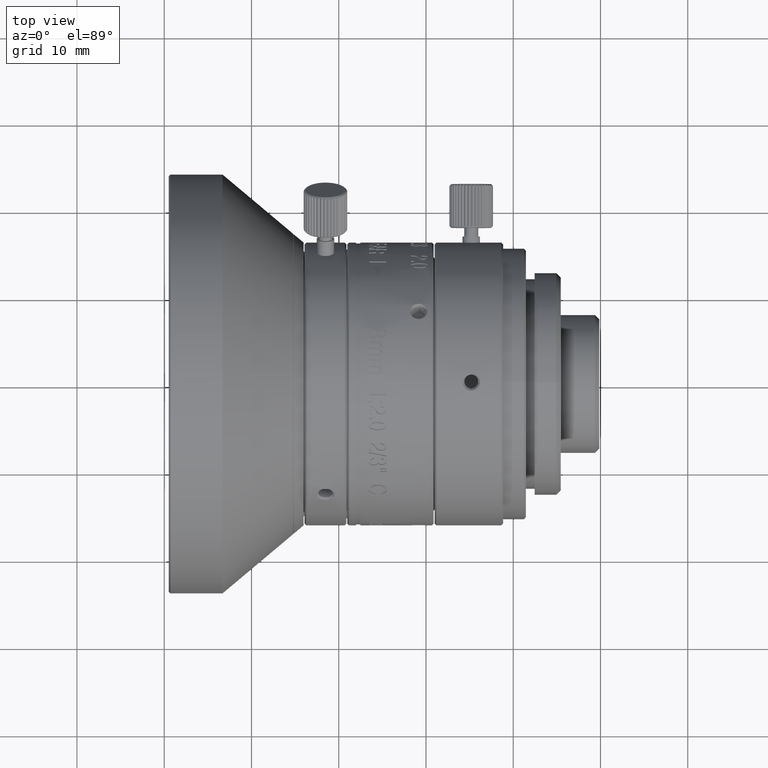
[diagram: clean part render]
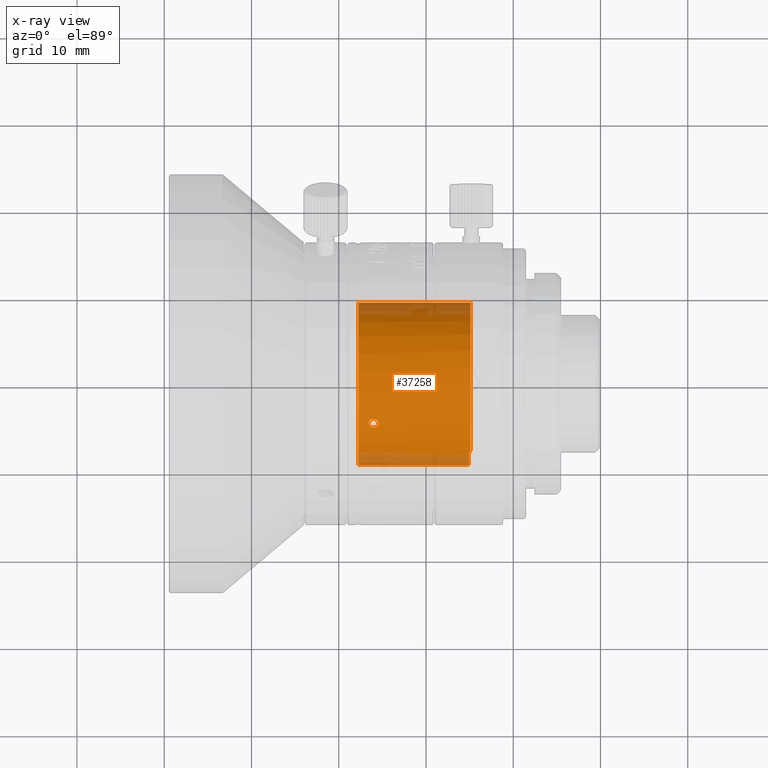
[diagram: x-ray — body ghosted, one internal face saturated and labeled with its STEP entity id]
A machine part, top view, then the same camera in x-ray: the body is ghosted and one INTERNAL B-rep face — a face not visible from any outside direction — is saturated and labeled: STEP entity #37258.
In plain terms, the highlighted cylindrical surface (partial cylindrical patch) has radius 9.3 mm, axis along (1, 0, 0).
Its self-contained STEP definition (entity closure, byte-faithful):
#1280 = CARTESIAN_POINT ( 'NONE',  ( 4.127753710119009156, -4.165479850295501940, 8.314973098202182555 ) ) ;
#1400 = LINE ( 'NONE', #52053, #67065 ) ;
#1757 = CARTESIAN_POINT ( 'NONE',  ( 3.836432456620450182, -4.165629492627000552, 8.314898131498662082 ) ) ;
#2320 = VERTEX_POINT ( 'NONE', #65933 ) ;
#2793 = CARTESIAN_POINT ( 'NONE',  ( 4.398610106473671344, -4.959965879075435957, 7.866981481087606198 ) ) ;
#3789 = CARTESIAN_POINT ( 'NONE',  ( 3.529136943312270791, 9.294575274457042013, 0.3241674387297692195 ) ) ;
#4627 = CIRCLE ( 'NONE', #82363, 9.299999999999997158 ) ;
#4742 = CARTESIAN_POINT ( 'NONE',  ( 4.532799999999999940, 9.299999999999998934, 4.544936563534000659E-12 ) ) ;
#5911 = DIRECTION ( 'NONE',  ( 0.000000000000000000, 1.000000000000000000, -3.771546347026999962E-11 ) ) ;
#6872 = CARTESIAN_POINT ( 'NONE',  ( 2.232799999999000029, 0.000000000000000000, 2.442490654175000269E-12 ) ) ;
#7069 = VERTEX_POINT ( 'NONE', #28516 ) ;
#7737 = CARTESIAN_POINT ( 'NONE',  ( 14.91279999980999982, -8.080329455667000005, 4.604979652609999974 ) ) ;
#8873 = CARTESIAN_POINT ( 'NONE',  ( 15.11280000000000001, 0.000000000000000000, 2.442490654175000269E-12 ) ) ;
#9067 = DIRECTION ( 'NONE',  ( 1.000000000000000000, -1.110923480791999971E-13, -3.209961629899000518E-11 ) ) ;
#9446 = CIRCLE ( 'NONE', #32728, 9.299999999999998934 ) ;
#9551 = CARTESIAN_POINT ( 'NONE',  ( 3.432800000000000296, -4.650000003985999442, 8.054036252895000914 ) ) ;
#11076 = CARTESIAN_POINT ( 'NONE',  ( 3.542038427086720898, -4.938980515152154638, 7.880299674918182617 ) ) ;
#11106 = CARTESIAN_POINT ( 'NONE',  ( 4.306824977124147580, 9.289148707336684296, 0.4537671128490006756 ) ) ;
#12063 = CARTESIAN_POINT ( 'NONE',  ( 4.233574622278393207, 9.287114030861767233, 0.4947656531276288794 ) ) ;
#12398 = DIRECTION ( 'NONE',  ( 0.000000000000000000, -0.8734061719794912193, 0.4869924627220951208 ) ) ;
#13406 = B_SPLINE_CURVE_WITH_KNOTS ( 'NONE', 3,
 ( #4742, #79720, #93877, #18390, #77797, #11106, #12063, #40751, #78261, #64600, #27136, #70464, #79238, #3789, #33493, #63181, #41241, #41720 ),
 .UNSPECIFIED., .F., .F.,
 ( 4, 2, 2, 2, 2, 2, 2, 2, 4 ),
 ( 0.000000000000000000, 0.1250000000000000000, 0.2500000000000000000, 0.3750000000000000000, 0.5000000000000000000, 0.6250000000000000000, 0.7500000000000000000, 0.8750000000000000000, 1.000000000000000000 ),
 .UNSPECIFIED. ) ;
#14736 = ORIENTED_EDGE ( 'NONE', *, *, #87548, .T. ) ;
#14778 = EDGE_LOOP ( 'NONE', ( #24714, #30665, #85236, #14736, #45375, #70752, #58007, #72449 ) ) ;
#16366 = LINE ( 'NONE', #46049, #90683 ) ;
#16934 = CARTESIAN_POINT ( 'NONE',  ( 4.129009832174532768, -5.118100662218775021, 7.764988449318423136 ) ) ;
#17812 = CARTESIAN_POINT ( 'NONE',  ( 3.487230982901239784, -4.440238215344757045, 8.171620087763141527 ) ) ;
#18151 = DIRECTION ( 'NONE',  ( 0.000000000000000000, 1.000000000000000000, -3.771546347026999962E-11 ) ) ;
#18356 = CARTESIAN_POINT ( 'NONE',  ( 3.436244133542391221, -4.712035622345890573, 8.017975401477620778 ) ) ;
#18390 = CARTESIAN_POINT ( 'NONE',  ( 4.477479558995211661, 9.296608968782168247, 0.2509541241526489497 ) ) ;
#18835 = CARTESIAN_POINT ( 'NONE',  ( 3.695961138630939669, -5.069418312547987249, 7.797538326584876778 ) ) ;
#20877 = CARTESIAN_POINT ( 'NONE',  ( 14.99551625472000005, -7.860880351732999038, 4.971601983467000885 ) ) ;
#20952 = EDGE_CURVE ( 'NONE', #7069, #87113, #21199, .T. ) ;
#21199 = B_SPLINE_CURVE_WITH_KNOTS ( 'NONE', 3,
 ( #52036, #7737, #88569, #20877, #36438, #50582 ),
 .UNSPECIFIED., .F., .F.,
 ( 4, 1, 1, 4 ),
 ( 0.000000000000000000, 0.3333333333333000081, 0.6666666666667000474, 1.000000000000000000 ),
 .UNSPECIFIED. ) ;
#23681 = CARTESIAN_POINT ( 'NONE',  ( 3.504796655206305012, -4.410653069803718296, 8.187615144443906701 ) ) ;
#24511 = DIRECTION ( 'NONE',  ( 1.000000000000000000, 0.000000000000000000, 0.000000000000000000 ) ) ;
#24714 = ORIENTED_EDGE ( 'NONE', *, *, #79394, .F. ) ;
#24723 = CARTESIAN_POINT ( 'NONE',  ( 4.532800000000001717, -4.712539687257563337, 8.017928949924526094 ) ) ;
#25137 = CARTESIAN_POINT ( 'NONE',  ( 4.532799999999999940, -4.649999999999999467, 8.054036255195999416 ) ) ;
#27136 = CARTESIAN_POINT ( 'NONE',  ( 3.867805017248658217, 9.284400318157304710, 0.5426396524927790121 ) ) ;
#28516 = CARTESIAN_POINT ( 'NONE',  ( 14.91280000000000072, -8.122677399969999712, 4.529029902343999936 ) ) ;
#30340 = CARTESIAN_POINT ( 'NONE',  ( 14.91280000000000072, -9.300000000000999023, -1.079167501321999869E-13 ) ) ;
#30609 = LINE ( 'NONE', #90027, #30677 ) ;
#30665 = ORIENTED_EDGE ( 'NONE', *, *, #65584, .F. ) ;
#30677 = VECTOR ( 'NONE', #37407, 1000.000000000000000 ) ;
#31456 = CARTESIAN_POINT ( 'NONE',  ( 3.432799999093305576, -4.587415484701491408, 8.090169441993719346 ) ) ;
#32728 = AXIS2_PLACEMENT_3D ( 'NONE', #6872, #42415, #5911 ) ;
#33463 = CARTESIAN_POINT ( 'NONE',  ( 4.271495691020294139, -5.068365036879834307, 7.798219167107547811 ) ) ;
#33493 = CARTESIAN_POINT ( 'NONE',  ( 3.488107600389654728, 9.296609546535652413, 0.2509263114875041056 ) ) ;
#35040 = AXIS2_PLACEMENT_3D ( 'NONE', #69277, #24511, #18151 ) ;
#36438 = CARTESIAN_POINT ( 'NONE',  ( 15.06927249519000078, -7.774237311151000362, 5.104603216490000150 ) ) ;
#37104 = DIRECTION ( 'NONE',  ( -1.000000000000000000, 0.000000000000000000, 0.000000000000000000 ) ) ;
#37258 = ADVANCED_FACE ( 'NONE', ( #76597, #77556 ), #45927, .F. ) ;
#37407 = DIRECTION ( 'NONE',  ( -1.000000000000000000, 0.000000000000000000, 4.296187597658999724E-13 ) ) ;
#38271 = CARTESIAN_POINT ( 'NONE',  ( 4.532800000000000828, -4.587171386531788464, 8.090310372096411129 ) ) ;
#38634 = VERTEX_POINT ( 'NONE', #39955 ) ;
#38805 = EDGE_CURVE ( 'NONE', #60928, #62205, #84152, .T. ) ;
#39955 = CARTESIAN_POINT ( 'NONE',  ( 4.532799999999999940, 9.299999999999998934, 4.544936563534000659E-12 ) ) ;
#40072 = CARTESIAN_POINT ( 'NONE',  ( 15.11280139772000020, -7.732205970456000443, 5.167495419933000100 ) ) ;
#40721 = CARTESIAN_POINT ( 'NONE',  ( 4.460845080078333247, -4.885295015798154061, 7.913583069456331387 ) ) ;
#40751 = CARTESIAN_POINT ( 'NONE',  ( 4.097809100003187766, 9.284400960443145223, 0.5426360378837008502 ) ) ;
#41241 = CARTESIAN_POINT ( 'NONE',  ( 3.432800000655576333, 9.300000000000000711, 0.05238553724049710425 ) ) ;
#41720 = CARTESIAN_POINT ( 'NONE',  ( 3.432800000365000326, 9.299999999999998934, 7.666191667715000173E-10 ) ) ;
#42415 = DIRECTION ( 'NONE',  ( 1.000000000000000000, 0.000000000000000000, 0.000000000000000000 ) ) ;
#43278 = CARTESIAN_POINT ( 'NONE',  ( 4.532799999999999940, -4.649999999999999467, 8.054036255195999416 ) ) ;
#44656 = VERTEX_POINT ( 'NONE', #91069 ) ;
#45375 = ORIENTED_EDGE ( 'NONE', *, *, #53803, .F. ) ;
#45383 = DIRECTION ( 'NONE',  ( 0.000000000000000000, -0.8314200554338834204, 0.5556443929549892413 ) ) ;
#45927 = CYLINDRICAL_SURFACE ( 'NONE', #35040, 9.299999999999998934 ) ;
#46049 = CARTESIAN_POINT ( 'NONE',  ( 2.232800000000000118, -9.299999999999998934, 4.069152179210999922E-10 ) ) ;
#47085 = ORIENTED_EDGE ( 'NONE', *, *, #38805, .T. ) ;
#47577 = CARTESIAN_POINT ( 'NONE',  ( 3.502612085629092764, -4.888348009515143033, 7.911939995974233142 ) ) ;
#47878 = VERTEX_POINT ( 'NONE', #61476 ) ;
#48038 = CARTESIAN_POINT ( 'NONE',  ( 3.459888348659813317, -4.800086040739333093, 7.965573374970282394 ) ) ;
#50582 = CARTESIAN_POINT ( 'NONE',  ( 15.11280139772000020, -7.732205970456000443, 5.167495419933000100 ) ) ;
#50683 = EDGE_CURVE ( 'NONE', #2320, #47878, #1400, .T. ) ;
#51797 = B_SPLINE_CURVE_WITH_KNOTS ( 'NONE', 3,
 ( #25137, #38271, #54832, #84534, #67970, #68439, #1280, #1757, #60679, #90408, #53375, #23681, #17812, #83081, #31456, #9551 ),
 .UNSPECIFIED., .F., .F.,
 ( 4, 2, 2, 2, 2, 2, 2, 4 ),
 ( 0.000000000000000000, 0.1250000000000003886, 0.2500000000000007772, 0.5000000000000004441, 0.7500000000000002220, 0.8124999999999997780, 0.8749999999999992228, 1.000000000000000000 ),
 .UNSPECIFIED. ) ;
#52036 = CARTESIAN_POINT ( 'NONE',  ( 14.91280000000000072, -8.122677399969999712, 4.529029902343999936 ) ) ;
#52053 = CARTESIAN_POINT ( 'NONE',  ( 3.432800000365000326, 9.299999999999998934, 7.666191667715000173E-10 ) ) ;
#53375 = CARTESIAN_POINT ( 'NONE',  ( 3.544376536566780533, -4.357672122219093502, 8.215935487266852633 ) ) ;
#53803 = EDGE_CURVE ( 'NONE', #64306, #55736, #16366, .T. ) ;
#53985 = DIRECTION ( 'NONE',  ( -1.000000000000000000, -1.924386575432000272E-14, -1.122972514193000150E-09 ) ) ;
#54832 = CARTESIAN_POINT ( 'NONE',  ( 4.519857081798145160, -4.528282969566753025, 8.123384729437360008 ) ) ;
#54912 = CARTESIAN_POINT ( 'NONE',  ( 4.478458267100502432, -4.856544801612217910, 7.931271078133501184 ) ) ;
#55391 = CARTESIAN_POINT ( 'NONE',  ( 3.432800000000000296, -4.650000003985999442, 8.054036252895000914 ) ) ;
#55736 = VERTEX_POINT ( 'NONE', #30340 ) ;
#55852 = CARTESIAN_POINT ( 'NONE',  ( 3.450020664981138019, -4.771864029661263551, 7.982513572013620440 ) ) ;
#56234 = DIRECTION ( 'NONE',  ( 1.000000000000000000, 0.000000000000000000, 0.000000000000000000 ) ) ;
#56585 = CARTESIAN_POINT ( 'NONE',  ( 3.432800000000000296, -4.650000003985999442, 8.054036252895000914 ) ) ;
#58007 = ORIENTED_EDGE ( 'NONE', *, *, #50683, .F. ) ;
#58579 = AXIS2_PLACEMENT_3D ( 'NONE', #8873, #37104, #45383 ) ;
#60679 = CARTESIAN_POINT ( 'NONE',  ( 3.693939878278551081, -4.219386565468544070, 8.288383847740554700 ) ) ;
#60928 = VERTEX_POINT ( 'NONE', #56585 ) ;
#61476 = CARTESIAN_POINT ( 'NONE',  ( 2.232800000000000118, 9.299999999999998934, -5.809478506703999859E-10 ) ) ;
#62205 = VERTEX_POINT ( 'NONE', #43278 ) ;
#63148 = CARTESIAN_POINT ( 'NONE',  ( 4.532799999999999940, -4.649999999999999467, 8.054036255195999416 ) ) ;
#63181 = CARTESIAN_POINT ( 'NONE',  ( 3.440185359754700301, 9.299321909307133538, 0.1151257409117198705 ) ) ;
#64306 = VERTEX_POINT ( 'NONE', #65909 ) ;
#64600 = CARTESIAN_POINT ( 'NONE',  ( 3.930491385686150085, 9.283722061275083703, 0.5499988545363920789 ) ) ;
#65584 = EDGE_CURVE ( 'NONE', #87113, #44656, #75694, .T. ) ;
#65909 = CARTESIAN_POINT ( 'NONE',  ( 2.232800000000000118, -9.299999999999998934, 4.069152179210999922E-10 ) ) ;
#65933 = CARTESIAN_POINT ( 'NONE',  ( 3.432800000365000326, 9.299999999999998934, 7.666191667715000173E-10 ) ) ;
#67065 = VECTOR ( 'NONE', #53985, 1000.000000000000000 ) ;
#67970 = CARTESIAN_POINT ( 'NONE',  ( 4.423545836819921639, -4.355045437660533203, 8.217434298034287821 ) ) ;
#68439 = CARTESIAN_POINT ( 'NONE',  ( 4.269790481481940070, -4.218264156350135963, 8.288958700194120510 ) ) ;
#69277 = CARTESIAN_POINT ( 'NONE',  ( 8.672799999999998732, 0.000000000000000000, 2.442490654175000269E-12 ) ) ;
#69960 = CARTESIAN_POINT ( 'NONE',  ( 3.837985298107304821, -5.118236476858228912, 7.764898928744063511 ) ) ;
#70464 = CARTESIAN_POINT ( 'NONE',  ( 3.732029785549733081, 9.287113850778712987, 0.4947685702023198462 ) ) ;
#70752 = ORIENTED_EDGE ( 'NONE', *, *, #89425, .F. ) ;
#72449 = ORIENTED_EDGE ( 'NONE', *, *, #94626, .F. ) ;
#75694 = CIRCLE ( 'NONE', #58579, 9.299999999999995381 ) ;
#76597 = FACE_OUTER_BOUND ( 'NONE', #14778, .T. ) ;
#77003 = EDGE_CURVE ( 'NONE', #62205, #60928, #51797, .T. ) ;
#77556 = FACE_BOUND ( 'NONE', #90875, .T. ) ;
#77797 = CARTESIAN_POINT ( 'NONE',  ( 4.436440286290213031, 9.294574342817732315, 0.3242025125723110301 ) ) ;
#78261 = CARTESIAN_POINT ( 'NONE',  ( 4.035084523542187718, 9.283722566367586637, 0.5500011451994850642 ) ) ;
#79132 = ORIENTED_EDGE ( 'NONE', *, *, #77003, .T. ) ;
#79238 = CARTESIAN_POINT ( 'NONE',  ( 3.658723879275963320, 9.289150548914081540, 0.4537282945908162612 ) ) ;
#79394 = EDGE_CURVE ( 'NONE', #44656, #38634, #30609, .T. ) ;
#79720 = CARTESIAN_POINT ( 'NONE',  ( 4.532799999999550522, 9.299999999999998934, 0.05239135084601365122 ) ) ;
#82363 = AXIS2_PLACEMENT_3D ( 'NONE', #85935, #56234, #12398 ) ;
#83081 = CARTESIAN_POINT ( 'NONE',  ( 3.446407744705279885, -4.527108033737679449, 8.124017104962048208 ) ) ;
#83647 = CARTESIAN_POINT ( 'NONE',  ( 4.421226254430873581, -4.936372014819625953, 7.881823121580035618 ) ) ;
#84139 = CARTESIAN_POINT ( 'NONE',  ( 4.519214566775126229, -4.771959048346138488, 7.982653702898908854 ) ) ;
#84152 = B_SPLINE_CURVE_WITH_KNOTS ( 'NONE', 3,
 ( #55391, #91455, #18356, #55852, #48038, #47577, #11076, #18835, #69960, #16934, #33463, #2793, #83647, #40721, #54912, #84139, #24723, #63148 ),
 .UNSPECIFIED., .F., .F.,
 ( 4, 2, 2, 2, 2, 2, 2, 2, 4 ),
 ( 0.000000000000000000, 0.06250000000000022204, 0.1250000000000004441, 0.2500000000000011657, 0.5000000000000019984, 0.7500000000000028866, 0.8125000000000023315, 0.8750000000000017764, 1.000000000000000000 ),
 .UNSPECIFIED. ) ;
#84534 = CARTESIAN_POINT ( 'NONE',  ( 4.462933061092433817, -4.407696557207893662, 8.189440589838994811 ) ) ;
#85236 = ORIENTED_EDGE ( 'NONE', *, *, #20952, .F. ) ;
#85935 = CARTESIAN_POINT ( 'NONE',  ( 14.91280000000000072, 0.000000000000000000, 2.442490654175000269E-12 ) ) ;
#87113 = VERTEX_POINT ( 'NONE', #40072 ) ;
#87548 = EDGE_CURVE ( 'NONE', #7069, #55736, #4627, .T. ) ;
#88569 = CARTESIAN_POINT ( 'NONE',  ( 14.92791512931999875, -7.993474007906001155, 4.755697176182000163 ) ) ;
#89425 = EDGE_CURVE ( 'NONE', #47878, #64306, #9446, .T. ) ;
#90027 = CARTESIAN_POINT ( 'NONE',  ( 15.11280000000000001, 9.299999999999998934, 0.000000000000000000 ) ) ;
#90408 = CARTESIAN_POINT ( 'NONE',  ( 3.566968631577049020, -4.333046581788874363, 8.228934647471497499 ) ) ;
#90683 = VECTOR ( 'NONE', #9067, 1000.000000000000000 ) ;
#90875 = EDGE_LOOP ( 'NONE', ( #47085, #79132 ) ) ;
#91069 = CARTESIAN_POINT ( 'NONE',  ( 15.11280000000000001, 9.299999999999998934, 0.000000000000000000 ) ) ;
#91455 = CARTESIAN_POINT ( 'NONE',  ( 3.432800000455136669, -4.681389265575064407, 8.035913654247577753 ) ) ;
#93877 = CARTESIAN_POINT ( 'NONE',  ( 4.525412977793561886, 9.299321793756439192, 0.1151390239969401486 ) ) ;
#94626 = EDGE_CURVE ( 'NONE', #38634, #2320, #13406, .T. ) ;